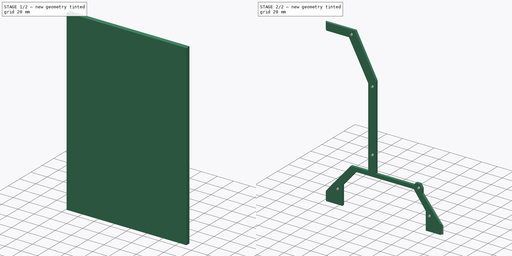
[diagram: build sequence overview — one tinted view per stage of 2, left to right]
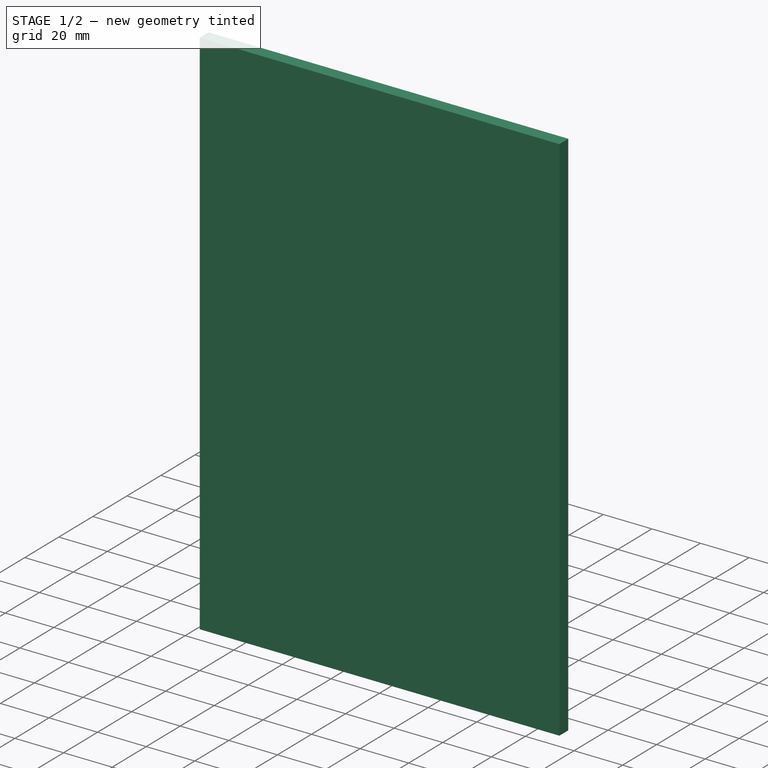
[diagram: stage 1 of 2 — iso view after this stage's code; geometry added in this stage tinted green]
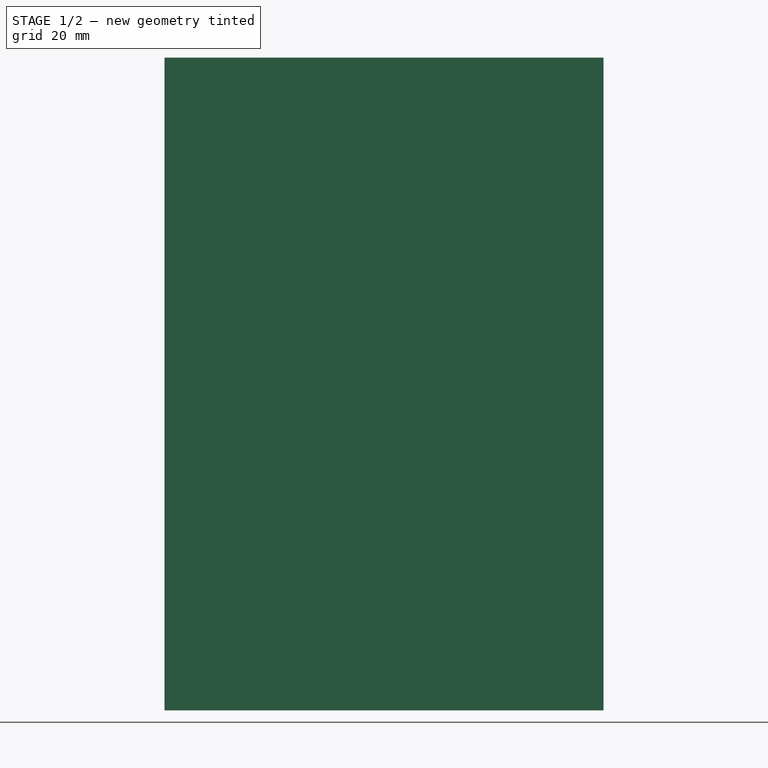
[diagram: stage 1 of 2 — front view after this stage's code; geometry added in this stage tinted green]
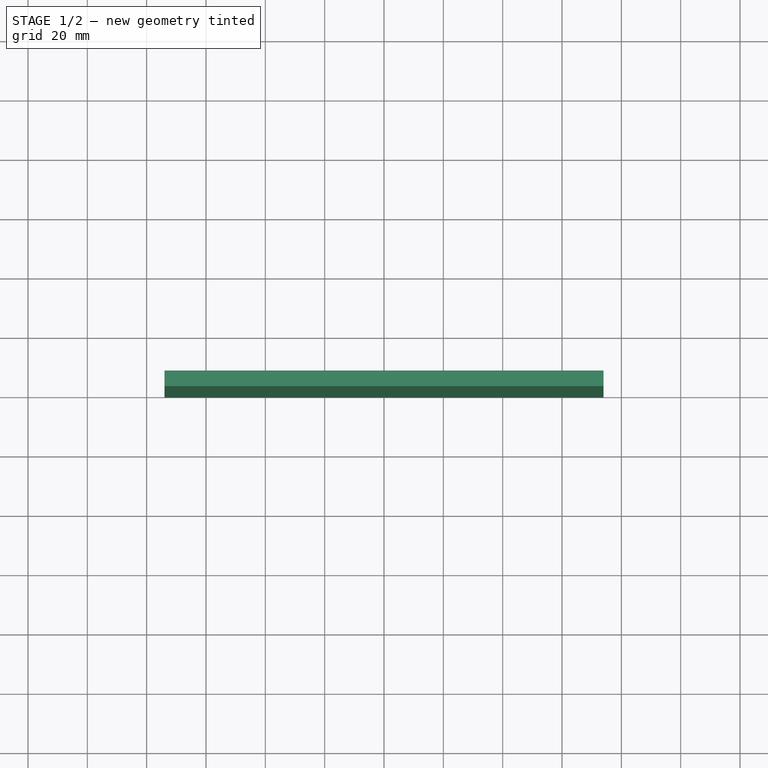
[diagram: stage 1 of 2 — top view after this stage's code; geometry added in this stage tinted green]
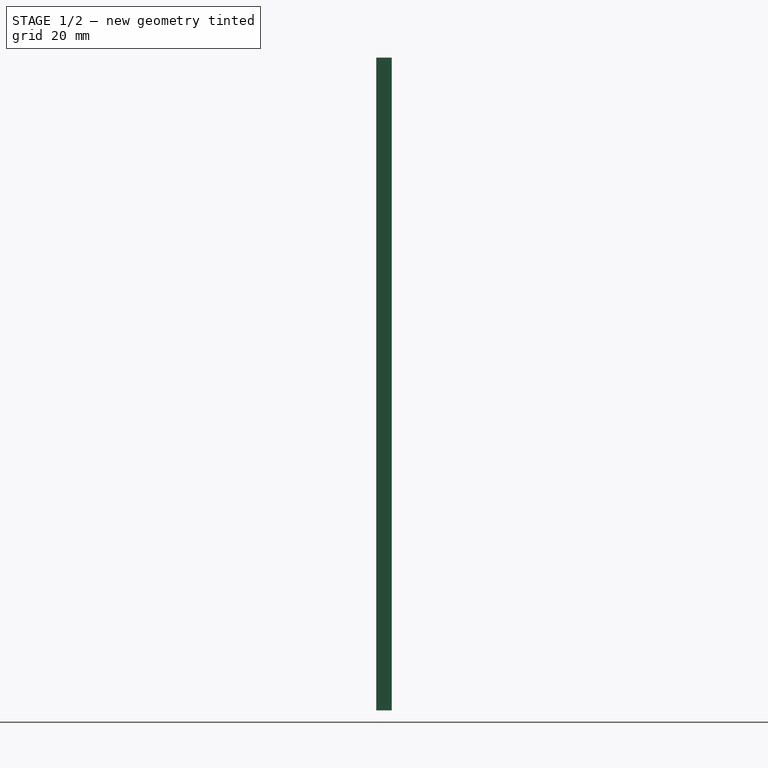
[diagram: stage 1 of 2 — right view after this stage's code; geometry added in this stage tinted green]
FCSTD DOCUMENT  (FreeCAD 0.18.4R)
Label: BottomPlate_drill-template-Centered_PSU
License: All rights reserved
LicenseURL: http://en.wikipedia.org/wiki/All_rights_reserved
objects: Sketcher::SketchObject×4, PartDesign::Pocket×3, PartDesign::Pad×1, PartDesign::Body×1
note: 13 computed .brp shape members not serialized (recipe doc carries the construction recipe); baked Part::Feature solids carry a one-line shape summary decoded from their .brp

FEATURE [Sketcher::SketchObject] Sketch
  MapMode = 5
  Support = -> [XY_Plane]
  sketch-geometry (4):
    g0: LineSegment StartX=-74 StartY=5.25 StartZ=0 EndX=74 EndY=5.25 EndZ=0
    g1: LineSegment StartX=74 StartY=5.25 StartZ=0 EndX=74 EndY=0 EndZ=0
    g2: LineSegment StartX=74 StartY=0 StartZ=0 EndX=-74 EndY=0 EndZ=0
    g3: LineSegment StartX=-74 StartY=0 StartZ=0 EndX=-74 EndY=5.25 EndZ=0
  constraints (11):
    c: Coincident(g0,g1)
    c: Coincident(g1,g2)
    c: Coincident(g2,g3)
    c: Coincident(g3,g0)
    c: Horizontal(g0)
    c: Horizontal(g2)
    c: Vertical(g1)
    c: Vertical(g3)
    c: DistanceX(g0,g0) = 148
    c: DistanceY(g2,g0) = 5.25
    c: Symmetric(g2,g1,g-1)
FEATURE [PartDesign::Pad] Pad
  Length = 220
  Length2 = 100
  Midplane = true
  Profile = -> Sketch
  Type = 0
FEATURE [Sketcher::SketchObject] Sketch001
  MapMode = 5
  Placement = pos=(0,5.25,0) rot=(0,0.707107,0.707107;3.14159rad)
  Support = -> [Pad]
  sketch-geometry (15):
    g0: LineSegment [constr] StartX=-51 StartY=93.5 StartZ=0 EndX=46 EndY=93.5 EndZ=0
    g1: LineSegment [constr] StartX=46 StartY=93.5 StartZ=0 EndX=46 EndY=-65.5 EndZ=0
    g2: LineSegment [constr] StartX=46 StartY=-65.5 StartZ=0 EndX=-51 EndY=-65.5 EndZ=0
    g3: LineSegment [constr] StartX=-51 StartY=-65.5 StartZ=0 EndX=-51 EndY=93.5 EndZ=0
    g4: GeomPoint X=-2.5 Y=14 Z=0
    g5: GeomPoint X=-44.5 Y=-63.5 Z=0
    g6: GeomPoint X=40.5 Y=89 Z=0
    g7: GeomPoint X=14 Y=36.5 Z=0
    g8: GeomPoint X=14 Y=-41.5 Z=0
    g9: Circle CenterX=-44.5 CenterY=-63.5 CenterZ=0 NormalX=0 NormalY=0 NormalZ=1 AngleXU=0 Radius=1.75
    g10: Circle CenterX=14 CenterY=-41.5 CenterZ=0 NormalX=0 NormalY=0 NormalZ=1 AngleXU=0 Radius=1.75
    g11: Circle CenterX=14 CenterY=36.5 CenterZ=0 NormalX=0 NormalY=0 NormalZ=1 AngleXU=0 Radius=1.75
    g12: Circle CenterX=40.5 CenterY=89 CenterZ=0 NormalX=0 NormalY=0 NormalZ=1 AngleXU=0 Radius=1.75
    g13: Circle CenterX=-58 CenterY=-92 CenterZ=0 NormalX=0 NormalY=0 NormalZ=1 AngleXU=0 Radius=1.75
    g14: Circle CenterX=58 CenterY=-92 CenterZ=0 NormalX=0 NormalY=0 NormalZ=1 AngleXU=0 Radius=1.75
  constraints (34):
    c: Coincident(g0,g1)
    c: Coincident(g1,g2)
    c: Coincident(g2,g3)
    c: Coincident(g3,g0)
    c: Horizontal(g0)
    c: Horizontal(g2)
    c: Vertical(g1)
    c: Vertical(g3)
    c: Symmetric(g0,g1,g4)
    c: DistanceX(g0,g0) = 97
    c: DistanceY(g1,g0) = 159
    c: Vertical(g7,g8)
    c: DistanceY(g8,g7) = 78
    c: DistanceX(g8,g1) = 32
    c: DistanceY(g1,g8) = 24
    c: DistanceX(g2,g5) = 6.5
    c: DistanceX(g5,g6) = 85
    c: DistanceY(g5,g6) = 152.5
    c: DistanceY(g6,g0) = 4.5
    c: DistanceY(g-1,g4) = 14
    c: DistanceX(g4,g-1) = 2.5
    c: Coincident(g9,g5)
    c: Coincident(g10,g8)
    c: Coincident(g11,g7)
    c: Coincident(g12,g6)
    c: Equal(g12,g9)
    c: Equal(g9,g10)
    c: Equal(g10,g11)
    c: Diameter(g9) = 3.5
    c: Equal(g13,g14)
    c: Symmetric(g13,g14,g-2)
    c: DistanceX(g13,g14) = 116
    c: DistanceY(g13,g-1) = 92
    c: Diameter(g14) = 3.5
FEATURE [PartDesign::Pocket] Pocket
  BaseFeature = -> Pad
  Length = 5
  Length2 = 100
  Profile = -> Sketch001
  Type = 0
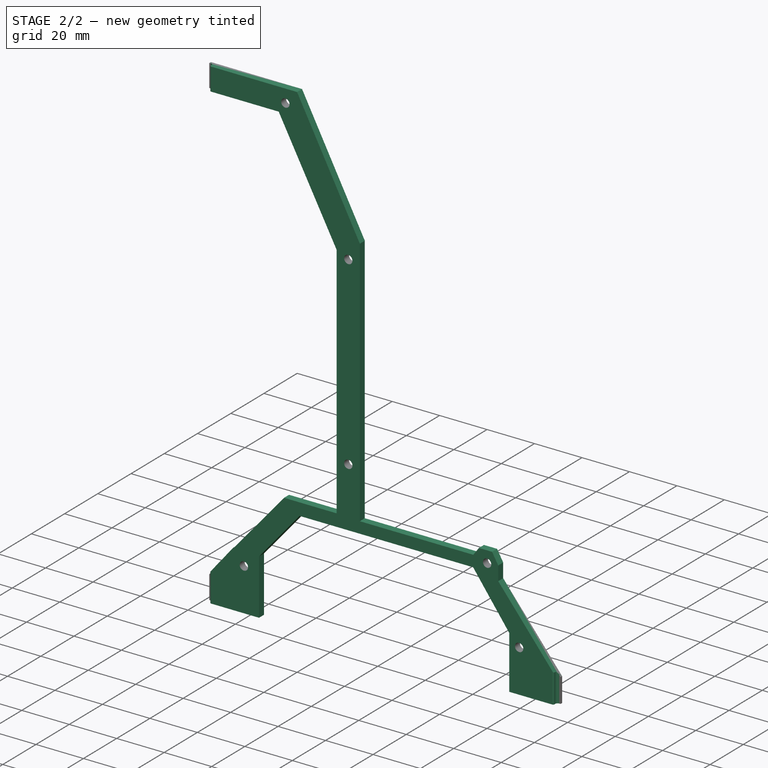
[diagram: stage 2 of 2 — iso view after this stage's code; geometry added in this stage tinted green]
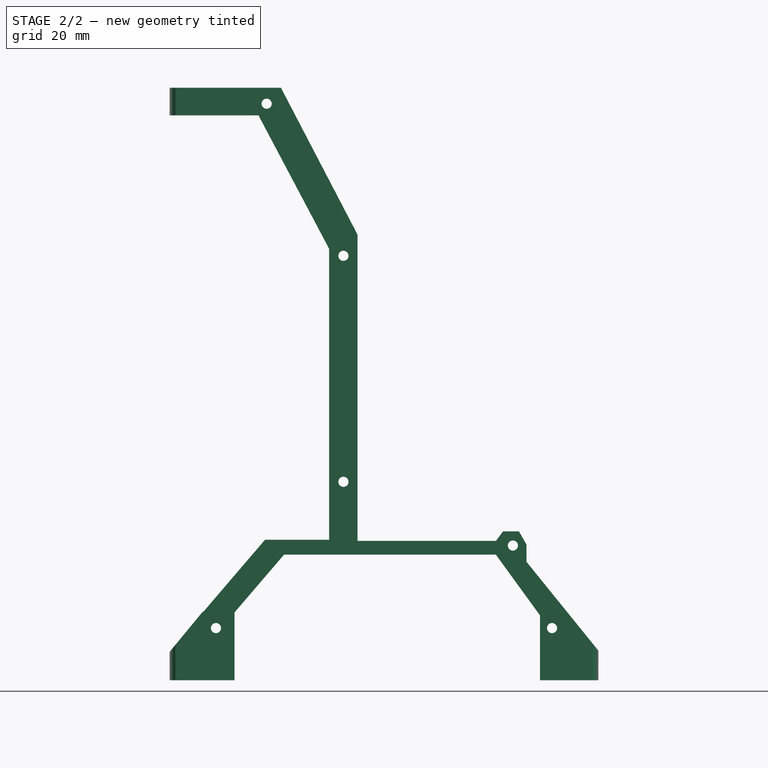
[diagram: stage 2 of 2 — front view after this stage's code; geometry added in this stage tinted green]
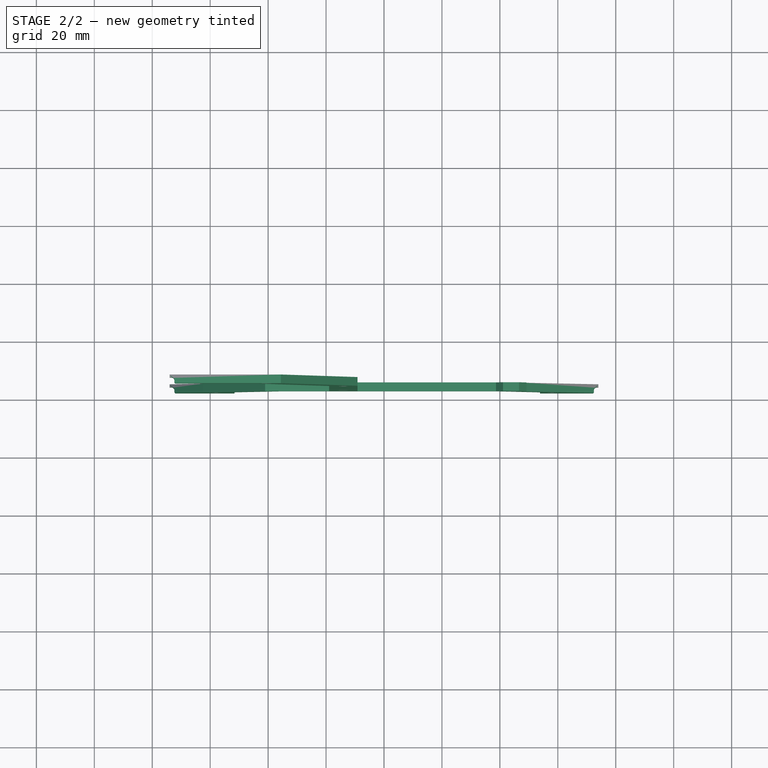
[diagram: stage 2 of 2 — top view after this stage's code; geometry added in this stage tinted green]
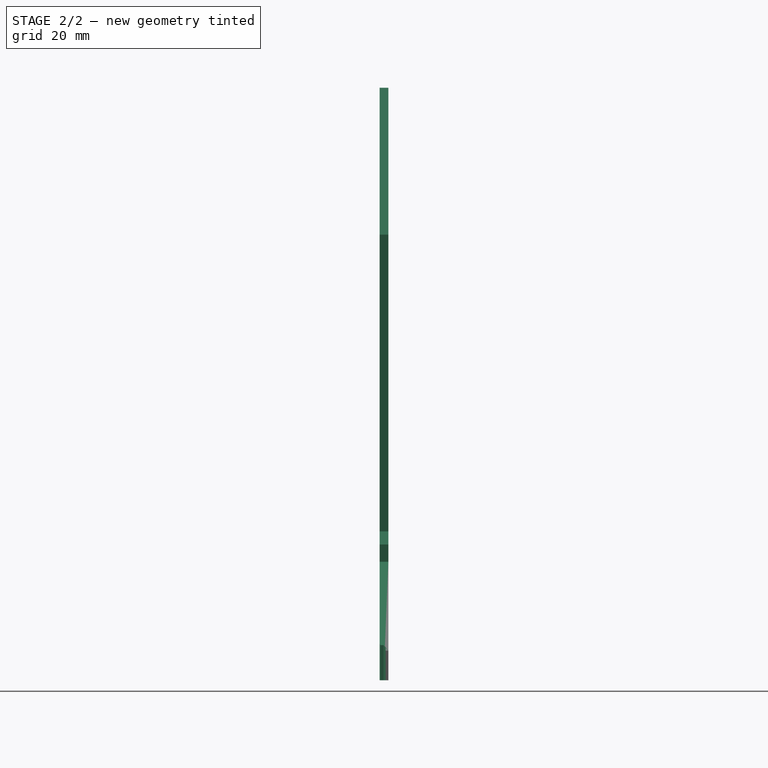
[diagram: stage 2 of 2 — right view after this stage's code; geometry added in this stage tinted green]
FEATURE [Sketcher::SketchObject] Sketch012
  AttachmentOffset = pos=(0,0,0) rot=(1,0,0;3.14159rad)
  MapMode = 5
  Placement = pos=(0,0,-110) rot=(0,0,1;0rad)
  Support = -> [Pocket]
  sketch-geometry (24):
    g0: LineSegment StartX=-72.3406 StartY=3.29268 StartZ=0 EndX=-72.3406 EndY=2.75 EndZ=0
    g1: ArcOfCircle CenterX=-73.3406 CenterY=3.29268 CenterZ=0 NormalX=0 NormalY=0 NormalZ=1 AngleXU=1.5708 Radius=1 StartAngle=4.71239 EndAngle=6.28319
    g2: LineSegment StartX=-75.6421 StartY=4.29268 StartZ=0 EndX=-73.3406 EndY=4.29268 EndZ=0
    g3: ArcOfCircle CenterX=-75.6421 CenterY=3.79268 CenterZ=0 NormalX=0 NormalY=0 NormalZ=1 AngleXU=-3.14159 Radius=0.5 StartAngle=4.71239 EndAngle=6.28319
    g4: LineSegment StartX=-76.1421 StartY=3.15052 StartZ=0 EndX=-76.1421 EndY=3.79268 EndZ=0
    g5: ArcOfCircle CenterX=-75.6421 CenterY=3.15052 CenterZ=0 NormalX=0 NormalY=0 NormalZ=1 AngleXU=-1.5708 Radius=0.5 StartAngle=4.71239 EndAngle=6.28319
    g6: LineSegment StartX=-74.9117 StartY=2.43873 StartZ=0 EndX=-75.6421 EndY=2.65052 EndZ=0
    g7: ArcOfCircle CenterX=-74.7543 CenterY=2.04795 CenterZ=0 NormalX=0 NormalY=0 NormalZ=1 AngleXU=-1.5708 Radius=0.421286 StartAngle=1.45674 EndAngle=3.52445
    g8: LineSegment StartX=-74.197 StartY=0.0731616 StartZ=0 EndX=-74.3358 EndY=2 EndZ=0
    g9: ArcOfCircle CenterX=-74.1413 CenterY=-0.0786993 CenterZ=0 NormalX=0 NormalY=0 NormalZ=1 AngleXU=-1.5708 Radius=0.161756 StartAngle=2.07891 EndAngle=3.49318
    g10: LineSegment StartX=74.4733 StartY=-0.042745 StartZ=0 EndX=-74 EndY=-7.1e-15 EndZ=0
    g11: ArcOfCircle CenterX=76 CenterY=-3e-16 CenterZ=0 NormalX=0 NormalY=0 NormalZ=1 AngleXU=7.559e-13 Radius=1.5273 StartAngle=2.3764 EndAngle=3.16958
    g12: LineSegment StartX=74.8355 StartY=2.02221 StartZ=0 EndX=74.8984 EndY=1.05792 EndZ=0
    g13: ArcOfCircle CenterX=75.3117 CenterY=2.31162 CenterZ=0 NormalX=0 NormalY=0 NormalZ=1 AngleXU=1.4e-15 Radius=0.557264 StartAngle=0.672054 EndAngle=3.68769
    g14: LineSegment StartX=75.7621 StartY=2.65052 StartZ=0 EndX=75.7478 EndY=2.65857 EndZ=0
    g15: ArcOfCircle CenterX=75.7621 CenterY=3.15052 CenterZ=0 NormalX=0 NormalY=0 NormalZ=1 AngleXU=1.4e-15 Radius=0.5 StartAngle=4.71239 EndAngle=6.28319
    g16: LineSegment StartX=76.2621 StartY=3.79268 StartZ=0 EndX=76.2621 EndY=3.15052 EndZ=0
    g17: ArcOfCircle CenterX=75.7621 CenterY=3.79268 CenterZ=0 NormalX=0 NormalY=0 NormalZ=1 AngleXU=1.5708 Radius=0.5 StartAngle=4.71239 EndAngle=6.28319
    g18: LineSegment StartX=73.4606 StartY=4.29268 StartZ=0 EndX=75.7621 EndY=4.29268 EndZ=0
    g19: ArcOfCircle CenterX=73.4606 CenterY=3.29268 CenterZ=0 NormalX=0 NormalY=0 NormalZ=1 AngleXU=-3.14159 Radius=1 StartAngle=4.71239 EndAngle=6.28319
    g20: LineSegment StartX=72.4606 StartY=2.75 StartZ=0 EndX=72.4606 EndY=3.29268 EndZ=0
    g21: ArcOfCircle CenterX=71.9606 CenterY=2.75 CenterZ=0 NormalX=0 NormalY=0 NormalZ=1 AngleXU=-3.14159 Radius=0.5 StartAngle=1.5708 EndAngle=3.14159
    g22: LineSegment StartX=-71.8406 StartY=2.25 StartZ=0 EndX=71.9606 EndY=2.25 EndZ=0
    g23: ArcOfCircle CenterX=-71.8406 CenterY=2.75 CenterZ=0 NormalX=0 NormalY=0 NormalZ=1 AngleXU=1.5708 Radius=0.5 StartAngle=1.5708 EndAngle=3.14159
  constraints (24):
    c: Coincident(g4,g5)
    c: Coincident(g3,g4)
    c: Coincident(g6,g5)
    c: Coincident(g2,g3)
    c: Coincident(g7,g6)
    c: Coincident(g9,g8)
    c: Coincident(g7,g8)
    c: Coincident(g2,g1)
    c: Coincident(g10,g9)
    c: Coincident(g23,g0)
    c: Coincident(g0,g1)
    c: Coincident(g23,g22)
    c: Coincident(g22,g21)
    c: Coincident(g21,g20)
    c: Coincident(g20,g19)
    c: Coincident(g10,g11)
    c: Coincident(g18,g19)
    c: Coincident(g11,g12)
    c: Coincident(g12,g13)
    c: Coincident(g14,g13)
    c: Coincident(g15,g14)
    c: Coincident(g17,g18)
    c: Coincident(g16,g15)
    c: Coincident(g17,g16)
FEATURE [PartDesign::Pocket] Pocket001
  BaseFeature = -> Pocket
  Length = 220
  Length2 = 100
  Profile = -> Sketch012
  Reversed = true
  Type = 0
FEATURE [Sketcher::SketchObject] Sketch013
  MapMode = 5
  Placement = pos=(0,5.25,0) rot=(0,0.707107,0.707107;3.14159rad)
  Support = -> [Pocket001]
  sketch-geometry (33):
    g0: LineSegment StartX=-38.6072 StartY=-66.6404 StartZ=0 EndX=34.5071 EndY=-66.6404 EndZ=0
    g1: LineSegment StartX=51.6065 StartY=-86.6076 StartZ=0 EndX=51.6065 EndY=-110.392 EndZ=0
    g2: LineSegment StartX=51.6065 StartY=-110.392 StartZ=0 EndX=-53.831 EndY=-110.392 EndZ=0
    g3: LineSegment StartX=-53.831 StartY=-110.392 StartZ=0 EndX=-53.831 EndY=-87.5873 EndZ=0
    g4: LineSegment StartX=-38.6072 StartY=-66.6404 StartZ=0 EndX=-53.831 EndY=-87.5873 EndZ=0
    g5: LineSegment StartX=18.938 StartY=-61.4842 StartZ=0 EndX=41.0503 EndY=-61.4842 EndZ=0
    g6: LineSegment StartX=75.2184 StartY=-58.2074 StartZ=0 EndX=75.2184 EndY=84.9733 EndZ=0
    g7: LineSegment StartX=75.2184 StartY=84.9733 StartZ=0 EndX=43.3153 EndY=84.9733 EndZ=0
    g8: LineSegment StartX=18.938 StartY=38.9234 StartZ=0 EndX=18.938 EndY=-61.4842 EndZ=0
    g9: LineSegment StartX=41.0503 StartY=-61.4842 StartZ=0 EndX=62.4876 EndY=-86.517 EndZ=0
    g10: LineSegment StartX=62.4876 StartY=-86.517 StartZ=0 EndX=62.4876 EndY=-86.2377 EndZ=0
    g11: LineSegment StartX=62.4876 StartY=-86.2377 StartZ=0 EndX=75.2184 EndY=-101.669 EndZ=0
    g12: LineSegment StartX=75.2184 StartY=-101.669 StartZ=0 EndX=75.2184 EndY=-58.2074 EndZ=0
    g13: LineSegment StartX=34.5071 StartY=-66.6404 StartZ=0 EndX=51.6065 EndY=-86.6076 EndZ=0
    g14: LineSegment StartX=75.5346 StartY=94.5186 StartZ=0 EndX=35.5759 EndY=94.5186 EndZ=0
    g15: LineSegment StartX=-76.2782 StartY=94.5186 StartZ=0 EndX=-76.2782 EndY=111.297 EndZ=0
    g16: LineSegment StartX=-76.2782 StartY=111.297 StartZ=0 EndX=75.5346 EndY=111.297 EndZ=0
    g17: LineSegment StartX=75.5346 StartY=111.297 StartZ=0 EndX=75.5346 EndY=94.5186 EndZ=0
    g18: LineSegment StartX=-76.2782 StartY=94.5186 StartZ=0 EndX=-75.9025 EndY=94.5186 EndZ=0
    g19: LineSegment StartX=9.1376 StartY=43.8247 StartZ=0 EndX=9.1376 EndY=-58.462 EndZ=0
    g20: LineSegment StartX=-41.0706 StartY=-58.6194 StartZ=0 EndX=-46.5999 EndY=-58.6194 EndZ=0
    g21: LineSegment StartX=-76.2782 StartY=-58.6194 StartZ=0 EndX=-76.2782 EndY=94.5186 EndZ=0
    g22: LineSegment StartX=43.3153 StartY=84.9733 StartZ=0 EndX=18.938 EndY=38.9234 EndZ=0
    g23: LineSegment StartX=35.5759 StartY=94.5186 StartZ=0 EndX=9.1376 EndY=43.8247 EndZ=0
    g24: LineSegment StartX=-75.7808 StartY=94.5186 StartZ=0 EndX=-76.2782 EndY=94.5186 EndZ=0
    g25: LineSegment StartX=-46.5999 StartY=-58.6194 StartZ=0 EndX=-49.1729 EndY=-63.128 EndZ=0
    g26: LineSegment StartX=-49.1729 StartY=-63.128 StartZ=0 EndX=-49.1729 EndY=-69.1001 EndZ=0
    g27: LineSegment StartX=-49.1729 StartY=-69.1001 StartZ=0 EndX=-74.5027 EndY=-100.395 EndZ=0
    g28: LineSegment StartX=-74.5027 StartY=-100.395 StartZ=0 EndX=-74.5027 EndY=-58.6194 EndZ=0
    g29: LineSegment StartX=-74.5027 StartY=-58.6194 StartZ=0 EndX=-76.2782 EndY=-58.6194 EndZ=0
    g30: LineSegment StartX=-41.0706 StartY=-58.6194 StartZ=0 EndX=-38.6631 EndY=-61.8723 EndZ=0
    g31: LineSegment StartX=-38.6631 StartY=-61.8723 StartZ=0 EndX=9.1376 EndY=-61.8723 EndZ=0
    g32: LineSegment StartX=9.1376 StartY=-58.462 StartZ=0 EndX=9.1376 EndY=-61.8723 EndZ=0
  constraints (58):
    c: Coincident(g1,g2)
    c: Coincident(g2,g3)
    c: Horizontal(g0)
    c: Horizontal(g2)
    c: Vertical(g1)
    c: Vertical(g3)
    c: Coincident(g0,g4)
    c: Coincident(g3,g4)
    c: Coincident(g6,g7)
    c: Coincident(g8,g5)
    c: Horizontal(g5)
    c: Horizontal(g7)
    c: Vertical(g6)
    c: Vertical(g8)
    c: Coincident(g9,g10)
    c: Coincident(g10,g11)
    c: Coincident(g11,g12)
    c: Vertical(g10)
    c: Vertical(g12)
    c: Coincident(g12,g6)
    c: Coincident(g5,g9)
    c: Coincident(g0,g13)
    c: Coincident(g1,g13)
    c: Parallel(g9,g13)
    c: Coincident(g24,g15)
    c: Coincident(g15,g16)
    c: Coincident(g16,g17)
    c: Coincident(g17,g14)
    c: Horizontal(g14)
    c: Horizontal(g16)
    c: Vertical(g15)
    c: Vertical(g17)
    c: Coincident(g29,g21)
    c: Coincident(g21,g18)
    c: Horizontal(g18)
    c: Horizontal(g20)
    c: Vertical(g19)
    c: Vertical(g21)
    c: Coincident(g18,g24)
    c: Coincident(g7,g22)
    c: Coincident(g8,g22)
    c: Coincident(g14,g23)
    c: Tangent(g14,g24)
    c: Coincident(g19,g23)
    c: Coincident(g25,g26)
    c: Coincident(g26,g27)
    c: Coincident(g27,g28)
    c: Vertical(g28)
    c: Coincident(g20,g25)
    c: Coincident(g29,g28)
    c: Tangent(g20,g29)
    c: Vertical(g26)
    c: Coincident(g31,g30)
    c: Horizontal(g31)
    c: Coincident(g32,g19)
    c: Coincident(g32,g31)
    c: Vertical(g32)
    c: Coincident(g20,g30)
FEATURE [PartDesign::Pocket] Pocket002
  BaseFeature = -> Pocket001
  Length = 5
  Length2 = 100
  Profile = -> Sketch013
  Type = 0
FEATURE [PartDesign::Body] Body
  Group = -> [Sketch,Pad,Sketch001,Pocket,Sketch012,Pocket001,Sketch013,Pocket002]
  Origin = -> Origin
  Tip = -> Pocket002
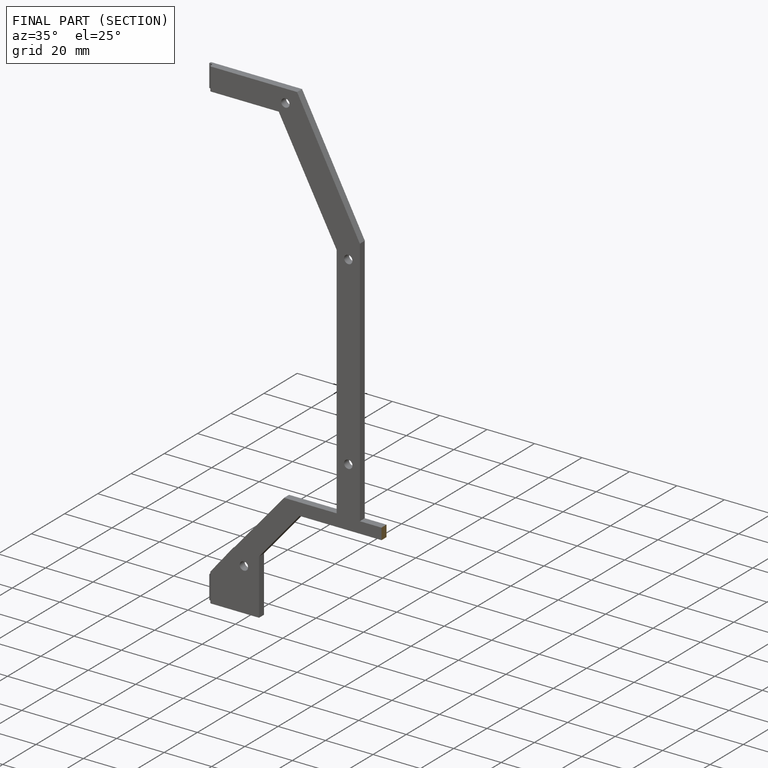
[diagram: finished part — half-section view (interior)]
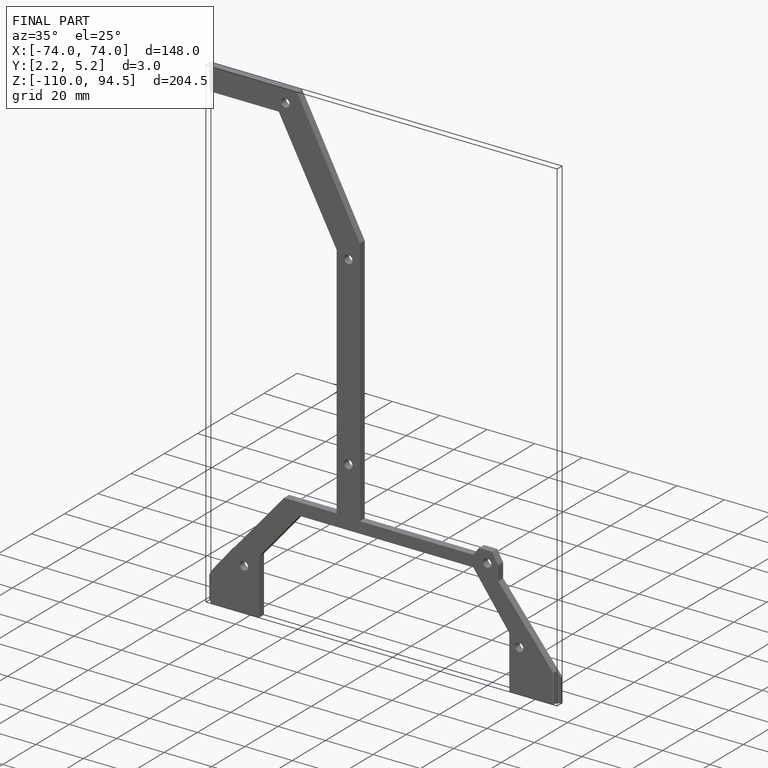
[diagram: finished part — iso view with bounding-box wireframe]
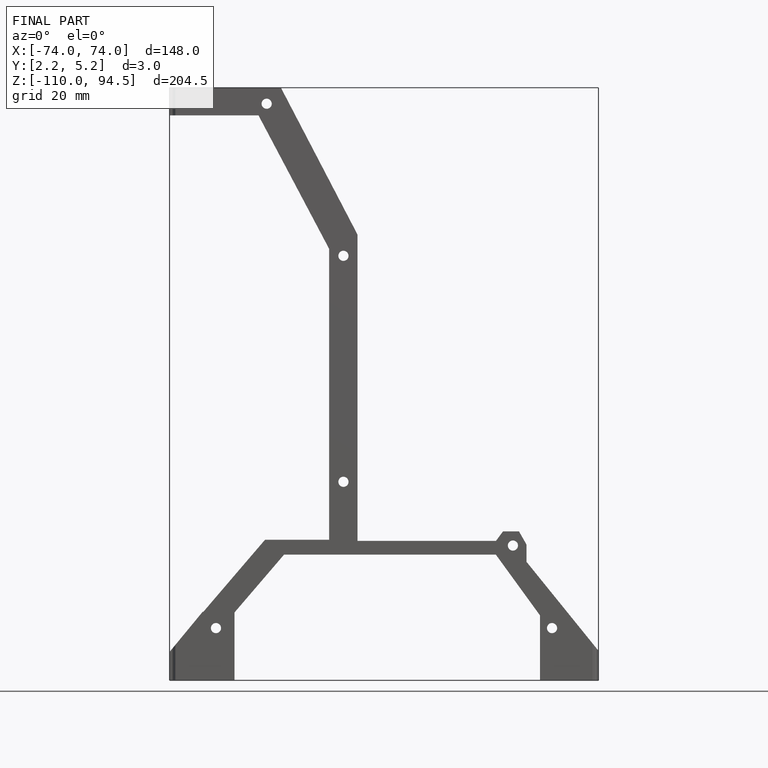
[diagram: finished part — front view with bounding-box wireframe]
